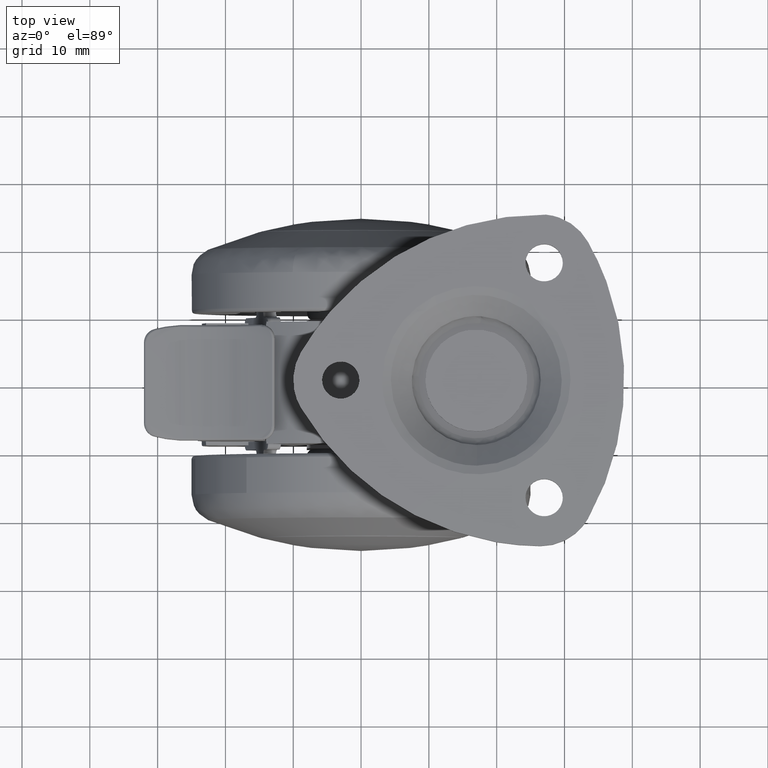
[diagram: clean part render]
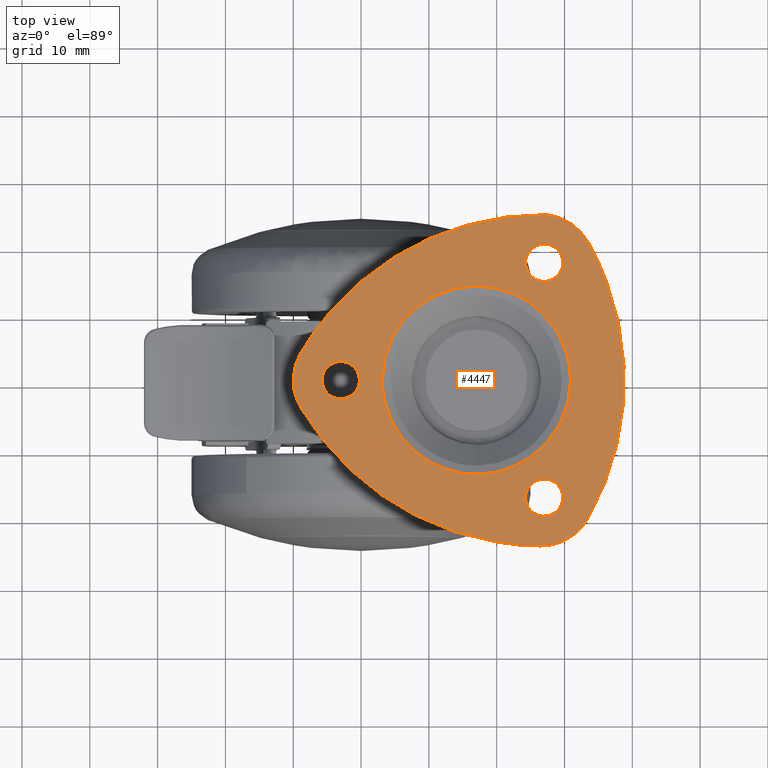
[diagram: same view with one face highlighted and labeled with its STEP entity id]
A machine part, top view. The second image highlights one B-rep face of the part: STEP entity #4447.
In plain terms, the highlighted face is a freeform B-spline surface patch.
Its self-contained STEP definition (entity closure, byte-faithful):
#1728=CARTESIAN_POINT('',(27.215762513262622,-14.578985332234719,40.0));
#1729=VERTEX_POINT('',#1728);
#1735=CARTESIAN_POINT('',(24.250000000000000,-17.320507999999950,40.0));
#1736=VERTEX_POINT('',#1735);
#1737=CARTESIAN_POINT('',(27.215762513262614,-14.578985332234719,40.0));
#1738=CARTESIAN_POINT('',(27.108047794282182,-14.570507999999947,40.0));
#1739=CARTESIAN_POINT('',(27.0,-14.570507999999950,40.0));
#1740=CARTESIAN_POINT('',(24.250000000000004,-14.570507999999956,39.999999999999993));
#1741=CARTESIAN_POINT('',(24.250000000000000,-17.320507999999950,40.0));
#1749=(BOUNDED_CURVE()B_SPLINE_CURVE(2,(#1737,#1738,#1739,#1740,#1741),.UNSPECIFIED.,.F.,.U.)B_SPLINE_CURVE_WITH_KNOTS((3,2,3),(0.736331300631386,0.750000000000000,1.0),.UNSPECIFIED.)CURVE()GEOMETRIC_REPRESENTATION_ITEM()RATIONAL_B_SPLINE_CURVE((0.969723356168934,0.983986122579733,1.0,0.707106781186548,1.0))REPRESENTATION_ITEM(''));
#1750=EDGE_CURVE('',#1729,#1736,#1749,.T.);
#1752=CARTESIAN_POINT('',(26.784237486737378,-20.062030667765178,40.0));
#1753=VERTEX_POINT('',#1752);
#1754=CARTESIAN_POINT('',(24.250000000000000,-17.320507999999950,40.0));
#1755=CARTESIAN_POINT('',(24.250000000000000,-19.862581852039479,40.0));
#1756=CARTESIAN_POINT('',(26.784237486737382,-20.062030667765185,40.0));
#1764=(BOUNDED_CURVE()B_SPLINE_CURVE(2,(#1754,#1755,#1756),.UNSPECIFIED.,.F.,.U.)B_SPLINE_CURVE_WITH_KNOTS((3,3),(0.0,0.236331300631386),.UNSPECIFIED.)CURVE()GEOMETRIC_REPRESENTATION_ITEM()RATIONAL_B_SPLINE_CURVE((1.0,0.723120658606815,0.969723356168934))REPRESENTATION_ITEM(''));
#1765=EDGE_CURVE('',#1736,#1753,#1764,.T.);
#1811=CARTESIAN_POINT('',(29.750000000000000,-17.320507999999950,40.0));
#1812=VERTEX_POINT('',#1811);
#1813=CARTESIAN_POINT('',(26.784237486737382,-20.062030667765185,40.0));
#1814=CARTESIAN_POINT('',(26.891952205717811,-20.070507999999947,40.0));
#1815=CARTESIAN_POINT('',(27.0,-20.070507999999950,40.0));
#1816=CARTESIAN_POINT('',(29.750000000000004,-20.070507999999954,39.999999999999993));
#1817=CARTESIAN_POINT('',(29.750000000000000,-17.320507999999950,40.0));
#1825=(BOUNDED_CURVE()B_SPLINE_CURVE(2,(#1813,#1814,#1815,#1816,#1817),.UNSPECIFIED.,.F.,.U.)B_SPLINE_CURVE_WITH_KNOTS((3,2,3),(0.236331300631386,0.250000000000000,0.500000000000000),.UNSPECIFIED.)CURVE()GEOMETRIC_REPRESENTATION_ITEM()RATIONAL_B_SPLINE_CURVE((0.969723356168934,0.983986122579733,1.0,0.707106781186548,1.0))REPRESENTATION_ITEM(''));
#1826=EDGE_CURVE('',#1753,#1812,#1825,.T.);
#1828=CARTESIAN_POINT('',(29.750000000000000,-17.320507999999950,40.0));
#1829=CARTESIAN_POINT('',(29.750000000000014,-14.778434147960411,40.000000000000007));
#1830=CARTESIAN_POINT('',(27.215762513262622,-14.578985332234723,40.0));
#1838=(BOUNDED_CURVE()B_SPLINE_CURVE(2,(#1828,#1829,#1830),.UNSPECIFIED.,.F.,.U.)B_SPLINE_CURVE_WITH_KNOTS((3,3),(0.500000000000000,0.736331300631387),.UNSPECIFIED.)CURVE()GEOMETRIC_REPRESENTATION_ITEM()RATIONAL_B_SPLINE_CURVE((1.0,0.723120658606813,0.969723356168936))REPRESENTATION_ITEM(''));
#1839=EDGE_CURVE('',#1812,#1729,#1838,.T.);
#1910=CARTESIAN_POINT('',(27.215762513262622,20.062030667765381,40.0));
#1911=VERTEX_POINT('',#1910);
#1917=CARTESIAN_POINT('',(24.250000000000000,17.320508000000149,40.0));
#1918=VERTEX_POINT('',#1917);
#1919=CARTESIAN_POINT('',(27.215762513262622,20.062030667765374,40.0));
#1920=CARTESIAN_POINT('',(27.108047794282186,20.070508000000149,39.999999999999993));
#1921=CARTESIAN_POINT('',(27.0,20.070508000000149,40.0));
#1922=CARTESIAN_POINT('',(24.250000000000004,20.070508000000153,39.999999999999993));
#1923=CARTESIAN_POINT('',(24.250000000000000,17.320508000000149,40.0));
#1931=(BOUNDED_CURVE()B_SPLINE_CURVE(2,(#1919,#1920,#1921,#1922,#1923),.UNSPECIFIED.,.F.,.U.)B_SPLINE_CURVE_WITH_KNOTS((3,2,3),(0.736331300631386,0.750000000000000,1.0),.UNSPECIFIED.)CURVE()GEOMETRIC_REPRESENTATION_ITEM()RATIONAL_B_SPLINE_CURVE((0.969723356168934,0.983986122579733,1.0,0.707106781186548,1.0))REPRESENTATION_ITEM(''));
#1932=EDGE_CURVE('',#1911,#1918,#1931,.T.);
#1934=CARTESIAN_POINT('',(26.784237486737378,14.578985332234920,40.0));
#1935=VERTEX_POINT('',#1934);
#1936=CARTESIAN_POINT('',(24.250000000000000,17.320508000000149,40.0));
#1937=CARTESIAN_POINT('',(24.250000000000007,14.778434147960615,40.000000000000007));
#1938=CARTESIAN_POINT('',(26.784237486737386,14.578985332234920,40.0));
#1946=(BOUNDED_CURVE()B_SPLINE_CURVE(2,(#1936,#1937,#1938),.UNSPECIFIED.,.F.,.U.)B_SPLINE_CURVE_WITH_KNOTS((3,3),(0.0,0.236331300631386),.UNSPECIFIED.)CURVE()GEOMETRIC_REPRESENTATION_ITEM()RATIONAL_B_SPLINE_CURVE((1.0,0.723120658606815,0.969723356168934))REPRESENTATION_ITEM(''));
#1947=EDGE_CURVE('',#1918,#1935,#1946,.T.);
#1993=CARTESIAN_POINT('',(29.750000000000000,17.320508000000149,40.0));
#1994=VERTEX_POINT('',#1993);
#1995=CARTESIAN_POINT('',(26.784237486737378,14.578985332234922,40.000000000000007));
#1996=CARTESIAN_POINT('',(26.891952205717818,14.570508000000155,40.0));
#1997=CARTESIAN_POINT('',(27.0,14.570508000000149,40.0));
#1998=CARTESIAN_POINT('',(29.750000000000004,14.570508000000155,39.999999999999993));
#1999=CARTESIAN_POINT('',(29.750000000000000,17.320508000000149,40.0));
#2007=(BOUNDED_CURVE()B_SPLINE_CURVE(2,(#1995,#1996,#1997,#1998,#1999),.UNSPECIFIED.,.F.,.U.)B_SPLINE_CURVE_WITH_KNOTS((3,2,3),(0.236331300631386,0.250000000000000,0.500000000000000),.UNSPECIFIED.)CURVE()GEOMETRIC_REPRESENTATION_ITEM()RATIONAL_B_SPLINE_CURVE((0.969723356168933,0.983986122579733,1.0,0.707106781186548,1.0))REPRESENTATION_ITEM(''));
#2008=EDGE_CURVE('',#1935,#1994,#2007,.T.);
#2010=CARTESIAN_POINT('',(29.750000000000000,17.320508000000149,40.0));
#2011=CARTESIAN_POINT('',(29.749999999999996,19.862581852039664,39.999999999999993));
#2012=CARTESIAN_POINT('',(27.215762513262618,20.062030667765377,40.0));
#2020=(BOUNDED_CURVE()B_SPLINE_CURVE(2,(#2010,#2011,#2012),.UNSPECIFIED.,.F.,.U.)B_SPLINE_CURVE_WITH_KNOTS((3,3),(0.500000000000000,0.736331300631385),.UNSPECIFIED.)CURVE()GEOMETRIC_REPRESENTATION_ITEM()RATIONAL_B_SPLINE_CURVE((1.0,0.723120658606816,0.969723356168931))REPRESENTATION_ITEM(''));
#2021=EDGE_CURVE('',#1994,#1911,#2020,.T.);
#2092=CARTESIAN_POINT('',(-2.784237486737184,2.741522667765232,40.0));
#2093=VERTEX_POINT('',#2092);
#2099=CARTESIAN_POINT('',(-5.749999999999800,0.0,40.0));
#2100=VERTEX_POINT('',#2099);
#2101=CARTESIAN_POINT('',(-2.784237486737184,2.741522667765232,40.0));
#2102=CARTESIAN_POINT('',(-2.891952205717617,2.750000000000000,40.0));
#2103=CARTESIAN_POINT('',(-2.999999999999800,2.750000000000000,40.0));
#2104=CARTESIAN_POINT('',(-5.749999999999800,2.750000000000000,39.999999999999993));
#2105=CARTESIAN_POINT('',(-5.749999999999800,0.0,40.0));
#2113=(BOUNDED_CURVE()B_SPLINE_CURVE(2,(#2101,#2102,#2103,#2104,#2105),.UNSPECIFIED.,.F.,.U.)B_SPLINE_CURVE_WITH_KNOTS((3,2,3),(0.736331300631386,0.750000000000000,1.0),.UNSPECIFIED.)CURVE()GEOMETRIC_REPRESENTATION_ITEM()RATIONAL_B_SPLINE_CURVE((0.969723356168934,0.983986122579733,1.0,0.707106781186548,1.0))REPRESENTATION_ITEM(''));
#2114=EDGE_CURVE('',#2093,#2100,#2113,.T.);
#2116=CARTESIAN_POINT('',(-3.215762513262416,-2.741522667765232,40.0));
#2117=VERTEX_POINT('',#2116);
#2118=CARTESIAN_POINT('',(-5.749999999999800,0.0,40.0));
#2119=CARTESIAN_POINT('',(-5.749999999999800,-2.542073852039530,40.0));
#2120=CARTESIAN_POINT('',(-3.215762513262417,-2.741522667765232,40.0));
#2128=(BOUNDED_CURVE()B_SPLINE_CURVE(2,(#2118,#2119,#2120),.UNSPECIFIED.,.F.,.U.)B_SPLINE_CURVE_WITH_KNOTS((3,3),(0.0,0.236331300631386),.UNSPECIFIED.)CURVE()GEOMETRIC_REPRESENTATION_ITEM()RATIONAL_B_SPLINE_CURVE((1.0,0.723120658606815,0.969723356168934))REPRESENTATION_ITEM(''));
#2129=EDGE_CURVE('',#2100,#2117,#2128,.T.);
#2175=CARTESIAN_POINT('',(-0.249999999999800,0.0,40.0));
#2176=VERTEX_POINT('',#2175);
#2177=CARTESIAN_POINT('',(-3.215762513262417,-2.741522667765233,40.0));
#2178=CARTESIAN_POINT('',(-3.108047794281985,-2.750000000000000,40.0));
#2179=CARTESIAN_POINT('',(-2.999999999999800,-2.750000000000000,40.0));
#2180=CARTESIAN_POINT('',(-0.249999999999800,-2.750000000000000,39.999999999999993));
#2181=CARTESIAN_POINT('',(-0.249999999999800,0.0,40.0));
#2189=(BOUNDED_CURVE()B_SPLINE_CURVE(2,(#2177,#2178,#2179,#2180,#2181),.UNSPECIFIED.,.F.,.U.)B_SPLINE_CURVE_WITH_KNOTS((3,2,3),(0.236331300631386,0.250000000000000,0.500000000000000),.UNSPECIFIED.)CURVE()GEOMETRIC_REPRESENTATION_ITEM()RATIONAL_B_SPLINE_CURVE((0.969723356168934,0.983986122579733,1.0,0.707106781186548,1.0))REPRESENTATION_ITEM(''));
#2190=EDGE_CURVE('',#2117,#2176,#2189,.T.);
#2192=CARTESIAN_POINT('',(-0.249999999999800,0.0,40.0));
#2193=CARTESIAN_POINT('',(-0.249999999999800,2.542073852039546,40.000000000000007));
#2194=CARTESIAN_POINT('',(-2.784237486737184,2.741522667765233,40.0));
#2202=(BOUNDED_CURVE()B_SPLINE_CURVE(2,(#2192,#2193,#2194),.UNSPECIFIED.,.F.,.U.)B_SPLINE_CURVE_WITH_KNOTS((3,3),(0.500000000000000,0.736331300631387),.UNSPECIFIED.)CURVE()GEOMETRIC_REPRESENTATION_ITEM()RATIONAL_B_SPLINE_CURVE((1.0,0.723120658606813,0.969723356168936))REPRESENTATION_ITEM(''));
#2203=EDGE_CURVE('',#2176,#2093,#2202,.T.);
#3572=CARTESIAN_POINT('',(8.015606608971906,10.586539439887799,40.0));
#3573=VERTEX_POINT('',#3572);
#3587=CARTESIAN_POINT('',(3.114966981767161,-2.755364E-015,40.0));
#3588=VERTEX_POINT('',#3587);
#3589=CARTESIAN_POINT('',(3.114966981767161,-2.755364E-015,40.0));
#3590=CARTESIAN_POINT('',(3.114966981767161,6.427552971429875,40.0));
#3591=CARTESIAN_POINT('',(8.015606608971906,10.586539439887801,39.999999999999993));
#3599=(BOUNDED_CURVE()B_SPLINE_CURVE(2,(#3589,#3590,#3591),.UNSPECIFIED.,.F.,.U.)B_SPLINE_CURVE_WITH_KNOTS((3,3),(0.0,0.137331629833782),.UNSPECIFIED.)CURVE()GEOMETRIC_REPRESENTATION_ITEM()RATIONAL_B_SPLINE_CURVE((1.0,0.839105987572344,0.854978670802182))REPRESENTATION_ITEM(''));
#3600=EDGE_CURVE('',#3588,#3573,#3599,.T.);
#3602=CARTESIAN_POINT('',(30.885033018232839,-2.755364E-015,40.0));
#3603=VERTEX_POINT('',#3602);
#3604=CARTESIAN_POINT('',(30.885033018232839,-2.755364E-015,40.0));
#3605=CARTESIAN_POINT('',(30.885033018232836,-13.885033018232845,40.0));
#3606=CARTESIAN_POINT('',(17.0,-13.885033018232850,40.0));
#3607=CARTESIAN_POINT('',(3.114966981767161,-13.885033018232845,40.0));
#3608=CARTESIAN_POINT('',(3.114966981767161,-2.755364E-015,40.0));
#3616=(BOUNDED_CURVE()B_SPLINE_CURVE(2,(#3604,#3605,#3606,#3607,#3608),.UNSPECIFIED.,.F.,.U.)B_SPLINE_CURVE_WITH_KNOTS((3,2,3),(0.500000000000000,0.750000000000000,1.0),.UNSPECIFIED.)CURVE()GEOMETRIC_REPRESENTATION_ITEM()RATIONAL_B_SPLINE_CURVE((1.0,0.707106781186547,1.0,0.707106781186547,1.0))REPRESENTATION_ITEM(''));
#3617=EDGE_CURVE('',#3603,#3588,#3616,.T.);
#3619=CARTESIAN_POINT('',(27.055373107367451,9.575156058893914,40.0));
#3620=VERTEX_POINT('',#3619);
#3621=CARTESIAN_POINT('',(27.055373107367458,9.575156058893914,40.0));
#3622=CARTESIAN_POINT('',(30.885033018232839,5.553429517548592,40.0));
#3623=CARTESIAN_POINT('',(30.885033018232839,-2.755364E-015,40.0));
#3631=(BOUNDED_CURVE()B_SPLINE_CURVE(2,(#3621,#3622,#3623),.UNSPECIFIED.,.F.,.U.)B_SPLINE_CURVE_WITH_KNOTS((3,3),(0.378690594339315,0.500000000000000),.UNSPECIFIED.)CURVE()GEOMETRIC_REPRESENTATION_ITEM()RATIONAL_B_SPLINE_CURVE((0.853681049734248,0.857877190814781,1.0))REPRESENTATION_ITEM(''));
#3632=EDGE_CURVE('',#3620,#3603,#3631,.T.);
#3669=CARTESIAN_POINT('',(8.015606608971906,10.586539439887801,39.999999999999993));
#3670=CARTESIAN_POINT('',(11.902305558958965,13.885033018232841,40.0));
#3671=CARTESIAN_POINT('',(17.0,13.885033018232839,40.0));
#3672=CARTESIAN_POINT('',(22.951324056050105,13.885033018232843,39.999999999999993));
#3673=CARTESIAN_POINT('',(27.055373107367462,9.575156058893915,40.000000000000007));
#3681=(BOUNDED_CURVE()B_SPLINE_CURVE(2,(#3669,#3670,#3671,#3672,#3673),.UNSPECIFIED.,.F.,.U.)B_SPLINE_CURVE_WITH_KNOTS((3,2,3),(0.137331629833782,0.250000000000000,0.378690594339315),.UNSPECIFIED.)CURVE()GEOMETRIC_REPRESENTATION_ITEM()RATIONAL_B_SPLINE_CURVE((0.854978670802182,0.868000793614204,1.0,0.849229590371767,0.853681049734248))REPRESENTATION_ITEM(''));
#3682=EDGE_CURVE('',#3573,#3620,#3681,.T.);
#4031=CARTESIAN_POINT('',(-8.887220776119202,-4.070158069546245,40.0));
#4032=VERTEX_POINT('',#4031);
#4038=CARTESIAN_POINT('',(-8.881526802053889,4.079779095723625,40.0));
#4039=VERTEX_POINT('',#4038);
#4040=CARTESIAN_POINT('',(-8.881526802053889,4.079779095723625,40.0));
#4041=CARTESIAN_POINT('',(-11.296411271031381,0.006495689132162,40.0));
#4042=CARTESIAN_POINT('',(-8.887220776119204,-4.070158069546244,40.0));
#4050=(BOUNDED_CURVE()B_SPLINE_CURVE(2,(#4040,#4041,#4042),.UNSPECIFIED.,.F.,.U.)CURVE()GEOMETRIC_REPRESENTATION_ITEM()QUASI_UNIFORM_CURVE()RATIONAL_B_SPLINE_CURVE((1.0,0.860546915805226,1.0))REPRESENTATION_ITEM(''));
#4051=EDGE_CURVE('',#4039,#4032,#4050,.T.);
#4091=CARTESIAN_POINT('',(27.269131668958352,24.413458369796050,40.0));
#4092=VERTEX_POINT('',#4091);
#4093=CARTESIAN_POINT('',(27.269131668958359,24.413458369796029,40.0));
#4094=CARTESIAN_POINT('',(3.328340503758142,24.674653331764720,40.000000000000014));
#4095=CARTESIAN_POINT('',(-8.881526802053896,4.079779095723636,40.0));
#4103=(BOUNDED_CURVE()B_SPLINE_CURVE(2,(#4093,#4094,#4095),.UNSPECIFIED.,.F.,.U.)CURVE()GEOMETRIC_REPRESENTATION_ITEM()QUASI_UNIFORM_CURVE()RATIONAL_B_SPLINE_CURVE((1.0,0.866186414923868,1.0))REPRESENTATION_ITEM(''));
#4104=EDGE_CURVE('',#4092,#4039,#4103,.T.);
#4144=CARTESIAN_POINT('',(33.478008623559802,20.376842513428102,40.0));
#4145=VERTEX_POINT('',#4144);
#4146=CARTESIAN_POINT('',(33.478008623559802,20.376842513428102,40.0));
#4147=CARTESIAN_POINT('',(31.427441527677040,24.016151291340574,40.0));
#4148=CARTESIAN_POINT('',(27.269131668958352,24.413458369796029,40.0));
#4156=(BOUNDED_CURVE()B_SPLINE_CURVE(2,(#4146,#4147,#4148),.UNSPECIFIED.,.F.,.U.)CURVE()GEOMETRIC_REPRESENTATION_ITEM()QUASI_UNIFORM_CURVE()RATIONAL_B_SPLINE_CURVE((1.0,0.886433292467668,1.0))REPRESENTATION_ITEM(''));
#4157=EDGE_CURVE('',#4145,#4092,#4156,.T.);
#4197=CARTESIAN_POINT('',(33.467806759583453,-20.385088002863849,40.0));
#4198=VERTEX_POINT('',#4197);
#4199=CARTESIAN_POINT('',(33.467806759583418,-20.385088002863849,40.0));
#4200=CARTESIAN_POINT('',(44.963275830308945,-0.006998545037082,40.0));
#4201=CARTESIAN_POINT('',(33.478008623559781,20.376842513428070,40.0));
#4209=(BOUNDED_CURVE()B_SPLINE_CURVE(2,(#4199,#4200,#4201),.UNSPECIFIED.,.F.,.U.)CURVE()GEOMETRIC_REPRESENTATION_ITEM()QUASI_UNIFORM_CURVE()RATIONAL_B_SPLINE_CURVE((1.0,0.871098911416930,1.0))REPRESENTATION_ITEM(''));
#4210=EDGE_CURVE('',#4198,#4145,#4209,.T.);
#4250=CARTESIAN_POINT('',(26.418748310005348,-24.454070550634601,40.0));
#4251=VERTEX_POINT('',#4250);
#4252=CARTESIAN_POINT('',(26.418748310005348,-24.454070550634590,40.0));
#4253=CARTESIAN_POINT('',(31.145374567690411,-24.502078316119857,39.999999999999993));
#4254=CARTESIAN_POINT('',(33.467806759583453,-20.385088002863849,40.0));
#4262=(BOUNDED_CURVE()B_SPLINE_CURVE(2,(#4252,#4253,#4254),.UNSPECIFIED.,.F.,.U.)CURVE()GEOMETRIC_REPRESENTATION_ITEM()QUASI_UNIFORM_CURVE()RATIONAL_B_SPLINE_CURVE((1.0,0.860945507312461,1.0))REPRESENTATION_ITEM(''));
#4263=EDGE_CURVE('',#4251,#4198,#4262,.T.);
#4301=CARTESIAN_POINT('',(-8.887220776119202,-4.070158069546259,40.0));
#4302=CARTESIAN_POINT('',(3.018654533397902,-24.216398656747568,39.999999999999993));
#4303=CARTESIAN_POINT('',(26.418748310005341,-24.454070550634640,40.0));
#4311=(BOUNDED_CURVE()B_SPLINE_CURVE(2,(#4301,#4302,#4303),.UNSPECIFIED.,.F.,.U.)CURVE()GEOMETRIC_REPRESENTATION_ITEM()QUASI_UNIFORM_CURVE()RATIONAL_B_SPLINE_CURVE((1.0,0.871058895698466,1.0))REPRESENTATION_ITEM(''));
#4312=EDGE_CURVE('',#4032,#4251,#4311,.T.);
#4410=CARTESIAN_POINT('',(41.260977906858940,-26.895003984228762,40.0));
#4411=CARTESIAN_POINT('',(-12.438673331172410,-26.895003984228762,40.0));
#4412=CARTESIAN_POINT('',(41.260977906858940,26.854392677209720,40.0));
#4413=CARTESIAN_POINT('',(-12.438673331172410,26.854392677209720,40.0));
#4414=B_SPLINE_SURFACE_WITH_KNOTS('',1,1,((#4410,#4412),(#4411,#4413)),.UNSPECIFIED.,.F.,.F.,.U.,(2,2),(2,2),(0.0,53.699651238031350),(0.0,53.749396661438482),.UNSPECIFIED.);
#4415=ORIENTED_EDGE('',*,*,#4051,.T.);
#4416=ORIENTED_EDGE('',*,*,#4312,.T.);
#4417=ORIENTED_EDGE('',*,*,#4263,.T.);
#4418=ORIENTED_EDGE('',*,*,#4210,.T.);
#4419=ORIENTED_EDGE('',*,*,#4157,.T.);
#4420=ORIENTED_EDGE('',*,*,#4104,.T.);
#4421=EDGE_LOOP('',(#4415,#4416,#4417,#4418,#4419,#4420));
#4422=FACE_OUTER_BOUND('',#4421,.T.);
#4423=ORIENTED_EDGE('',*,*,#3617,.T.);
#4424=ORIENTED_EDGE('',*,*,#3600,.T.);
#4425=ORIENTED_EDGE('',*,*,#3682,.T.);
#4426=ORIENTED_EDGE('',*,*,#3632,.T.);
#4427=EDGE_LOOP('',(#4423,#4424,#4425,#4426));
#4428=FACE_BOUND('',#4427,.T.);
#4429=ORIENTED_EDGE('',*,*,#2203,.F.);
#4430=ORIENTED_EDGE('',*,*,#2190,.F.);
#4431=ORIENTED_EDGE('',*,*,#2129,.F.);
#4432=ORIENTED_EDGE('',*,*,#2114,.F.);
#4433=EDGE_LOOP('',(#4429,#4430,#4431,#4432));
#4434=FACE_BOUND('',#4433,.T.);
#4435=ORIENTED_EDGE('',*,*,#2021,.F.);
#4436=ORIENTED_EDGE('',*,*,#2008,.F.);
#4437=ORIENTED_EDGE('',*,*,#1947,.F.);
#4438=ORIENTED_EDGE('',*,*,#1932,.F.);
#4439=EDGE_LOOP('',(#4435,#4436,#4437,#4438));
#4440=FACE_BOUND('',#4439,.T.);
#4441=ORIENTED_EDGE('',*,*,#1839,.F.);
#4442=ORIENTED_EDGE('',*,*,#1826,.F.);
#4443=ORIENTED_EDGE('',*,*,#1765,.F.);
#4444=ORIENTED_EDGE('',*,*,#1750,.F.);
#4445=EDGE_LOOP('',(#4441,#4442,#4443,#4444));
#4446=FACE_BOUND('',#4445,.T.);
#4447=ADVANCED_FACE('',(#4422,#4428,#4434,#4440,#4446),#4414,.F.);